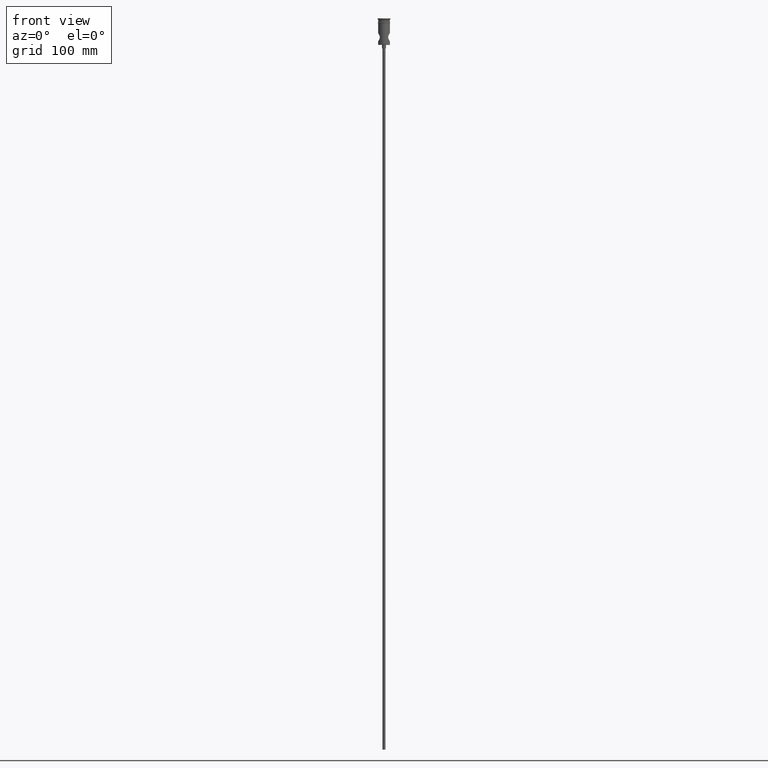
[diagram: clean part render]
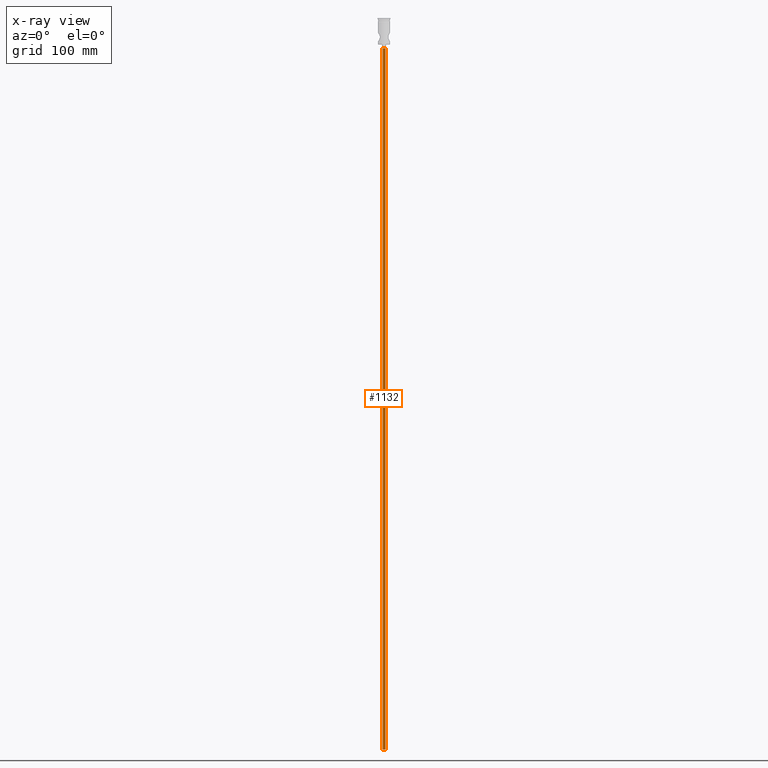
[diagram: x-ray — body ghosted, one internal face saturated and labeled with its STEP entity id]
A machine part, front view, then the same camera in x-ray: the body is ghosted and one INTERNAL B-rep face — a face not visible from any outside direction — is saturated and labeled: STEP entity #1132.
In plain terms, the highlighted cylindrical surface (edge-blend (fillet) strip) has radius 1.25 mm, axis along (-0, -0, 1).
Its self-contained STEP definition (entity closure, byte-faithful):
#105 = ORIENTED_EDGE ( 'NONE', *, *, #161, .T. ) ;
#129 = VERTEX_POINT ( 'NONE', #1191 ) ;
#150 = ORIENTED_EDGE ( 'NONE', *, *, #328, .F. ) ;
#161 = EDGE_CURVE ( 'NONE', #746, #309, #239, .T. ) ;
#239 = CIRCLE ( 'NONE', #660, 1.250000000000000000 ) ;
#309 = VERTEX_POINT ( 'NONE', #899 ) ;
#328 = EDGE_CURVE ( 'NONE', #566, #309, #790, .T. ) ;
#345 = EDGE_CURVE ( 'NONE', #129, #746, #956, .T. ) ;
#418 = DIRECTION ( 'NONE',  ( 0.000000000000000000, 0.000000000000000000, -1.000000000000000000 ) ) ;
#419 = FACE_OUTER_BOUND ( 'NONE', #1111, .T. ) ;
#500 = DIRECTION ( 'NONE',  ( -0.000000000000000000, -0.000000000000000000, 1.000000000000000000 ) ) ;
#566 = VERTEX_POINT ( 'NONE', #1414 ) ;
#625 = CARTESIAN_POINT ( 'NONE',  ( 0.000000000000000000, 0.000000000000000000, -622.4999999999998863 ) ) ;
#629 = CARTESIAN_POINT ( 'NONE',  ( 0.000000000000000000, 0.000000000000000000, -622.4999999999998863 ) ) ;
#660 = AXIS2_PLACEMENT_3D ( 'NONE', #1432, #418, #1213 ) ;
#728 = CIRCLE ( 'NONE', #1066, 1.250000000000000000 ) ;
#746 = VERTEX_POINT ( 'NONE', #825 ) ;
#790 = LINE ( 'NONE', #1136, #1211 ) ;
#793 = EDGE_CURVE ( 'NONE', #129, #566, #728, .T. ) ;
#819 = ORIENTED_EDGE ( 'NONE', *, *, #345, .T. ) ;
#825 = CARTESIAN_POINT ( 'NONE',  ( -1.250000000000000000, 1.530808498934191571E-16, -25.50000000000000000 ) ) ;
#827 = CARTESIAN_POINT ( 'NONE',  ( -1.250000000000000000, 1.530808498934191571E-16, -622.4999999999998863 ) ) ;
#866 = DIRECTION ( 'NONE',  ( 1.000000000000000000, 0.000000000000000000, 0.000000000000000000 ) ) ;
#868 = DIRECTION ( 'NONE',  ( 0.000000000000000000, 0.000000000000000000, -1.000000000000000000 ) ) ;
#899 = CARTESIAN_POINT ( 'NONE',  ( 1.250000000000000000, 0.000000000000000000, -25.50000000000000000 ) ) ;
#943 = CYLINDRICAL_SURFACE ( 'NONE', #1300, 1.250000000000000000 ) ;
#956 = LINE ( 'NONE', #827, #1116 ) ;
#1066 = AXIS2_PLACEMENT_3D ( 'NONE', #625, #868, #1288 ) ;
#1109 = ORIENTED_EDGE ( 'NONE', *, *, #793, .F. ) ;
#1111 = EDGE_LOOP ( 'NONE', ( #1109, #819, #105, #150 ) ) ;
#1116 = VECTOR ( 'NONE', #1172, 1000.000000000000000 ) ;
#1132 = ADVANCED_FACE ( 'NONE', ( #419 ), #943, .T. ) ;
#1136 = CARTESIAN_POINT ( 'NONE',  ( 1.250000000000000000, 0.000000000000000000, -622.4999999999998863 ) ) ;
#1172 = DIRECTION ( 'NONE',  ( -0.000000000000000000, -0.000000000000000000, 1.000000000000000000 ) ) ;
#1191 = CARTESIAN_POINT ( 'NONE',  ( -1.250000000000000000, 1.530808498934191571E-16, -622.4999999999998863 ) ) ;
#1211 = VECTOR ( 'NONE', #1233, 1000.000000000000000 ) ;
#1213 = DIRECTION ( 'NONE',  ( -1.000000000000000000, 0.000000000000000000, 0.000000000000000000 ) ) ;
#1233 = DIRECTION ( 'NONE',  ( -0.000000000000000000, -0.000000000000000000, 1.000000000000000000 ) ) ;
#1288 = DIRECTION ( 'NONE',  ( -1.000000000000000000, 0.000000000000000000, 0.000000000000000000 ) ) ;
#1300 = AXIS2_PLACEMENT_3D ( 'NONE', #629, #500, #866 ) ;
#1414 = CARTESIAN_POINT ( 'NONE',  ( 1.250000000000000000, 0.000000000000000000, -622.4999999999998863 ) ) ;
#1432 = CARTESIAN_POINT ( 'NONE',  ( 0.000000000000000000, 0.000000000000000000, -25.50000000000000000 ) ) ;